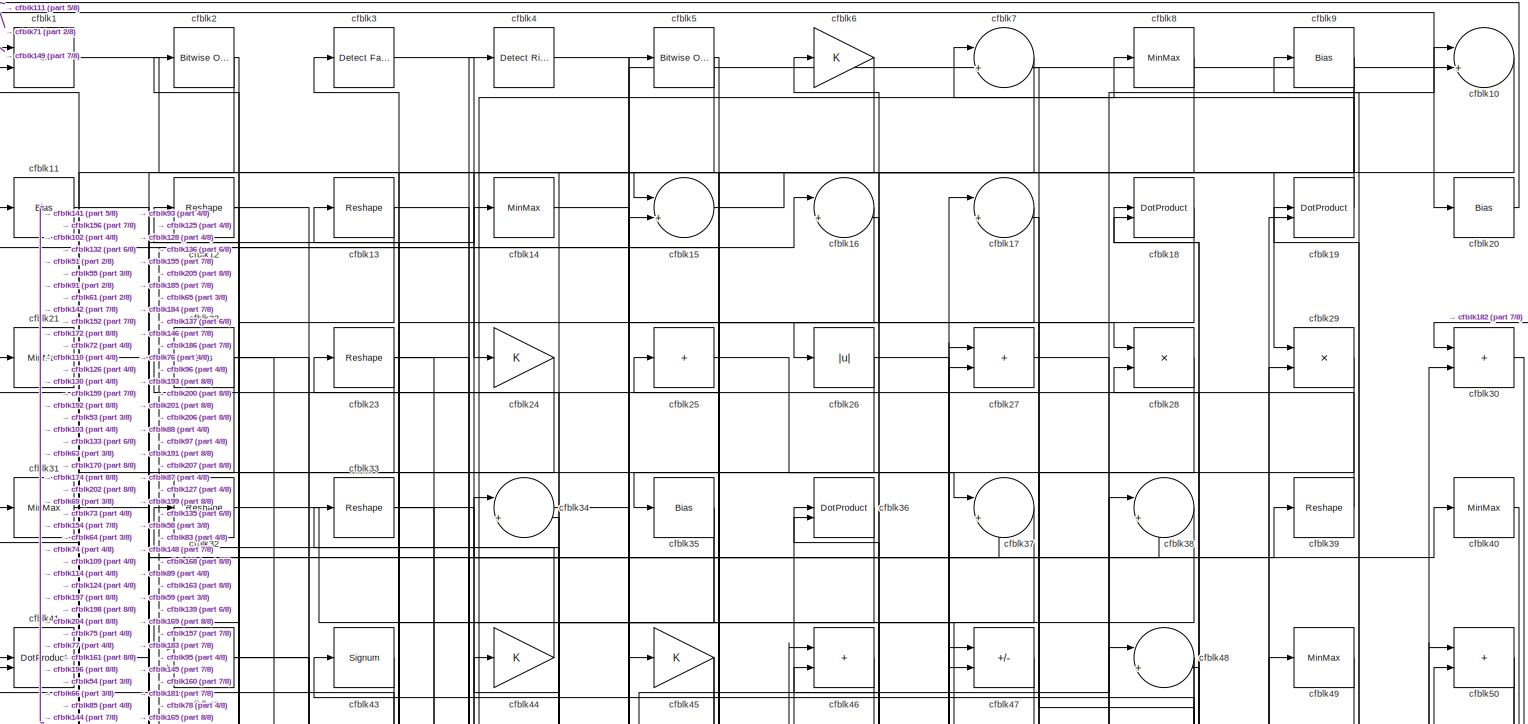
[diagram: root canvas - part 1/8, full width, top band]
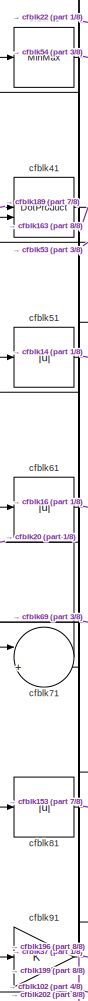
[diagram: root canvas - part 2/8, top left region]
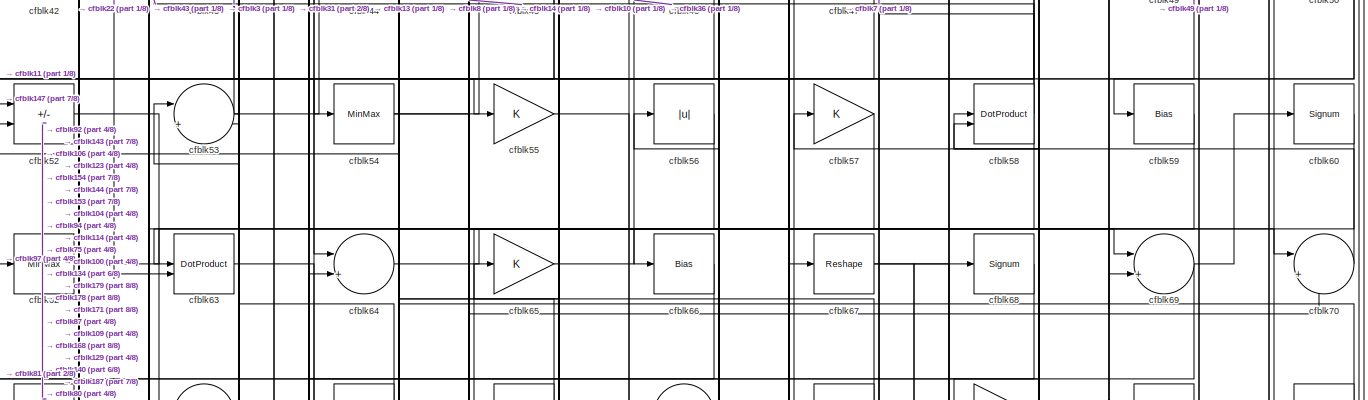
[diagram: root canvas - part 3/8, full width, top band]
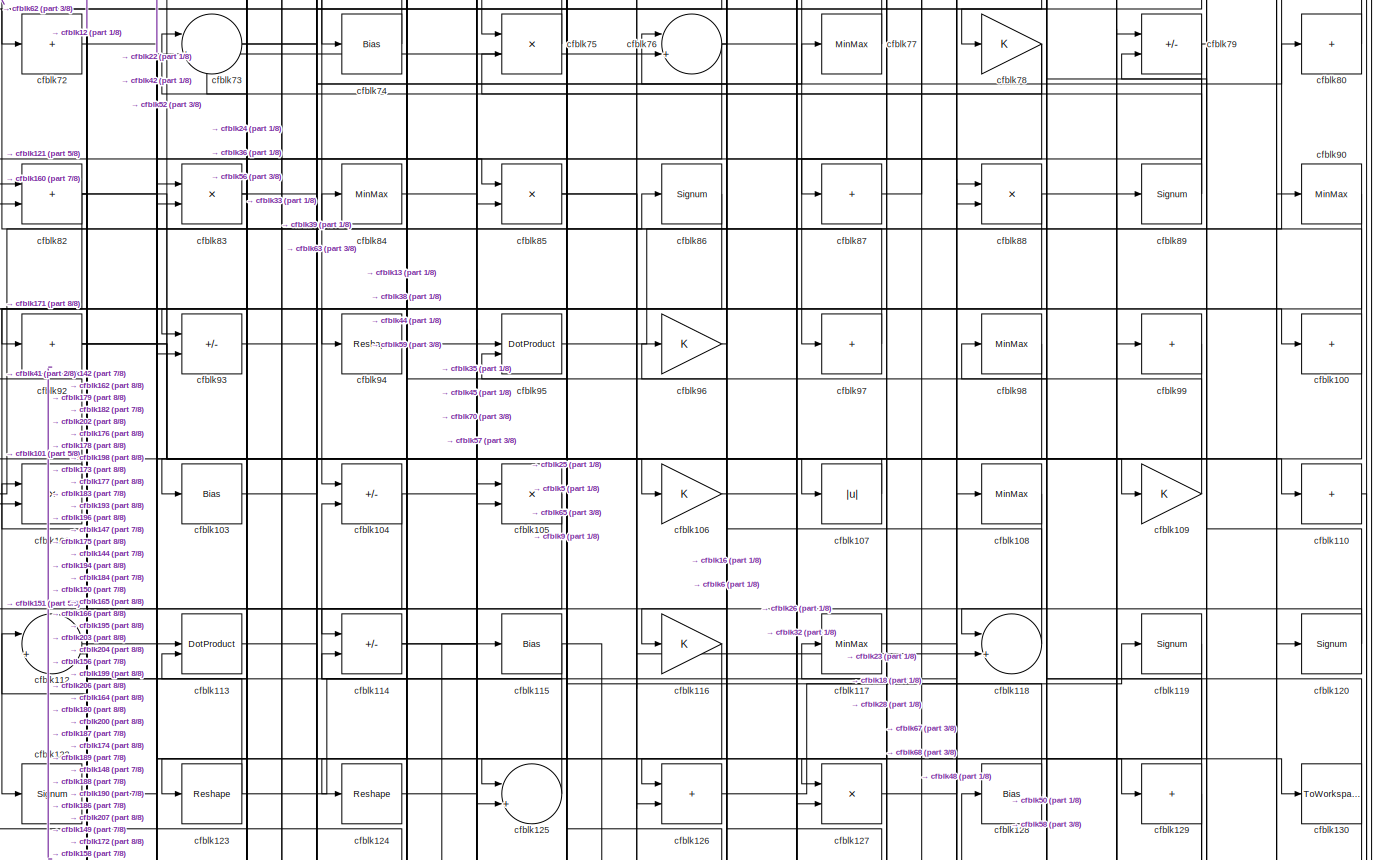
[diagram: root canvas - part 4/8, full width, middle band]
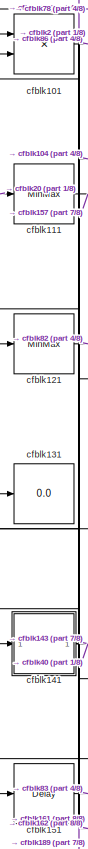
[diagram: root canvas - part 5/8, middle left region]
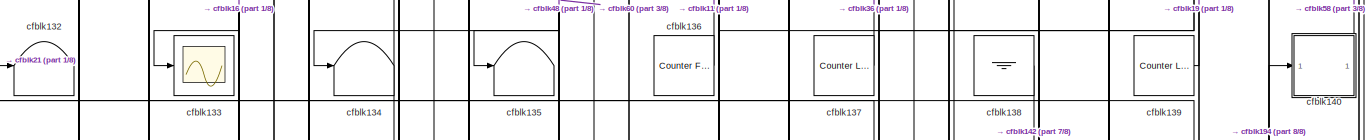
[diagram: root canvas - part 6/8, full width, middle band]
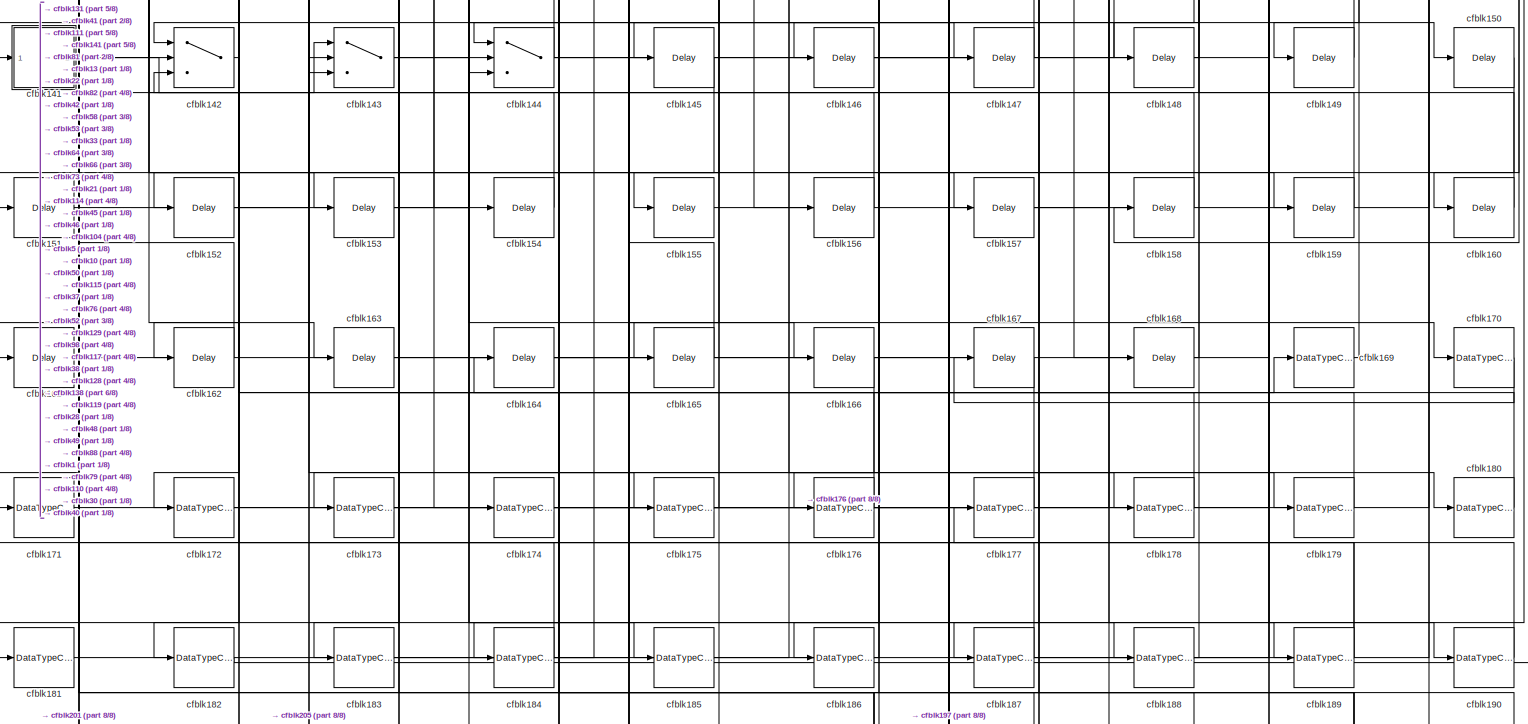
[diagram: root canvas - part 7/8, full width, bottom band]
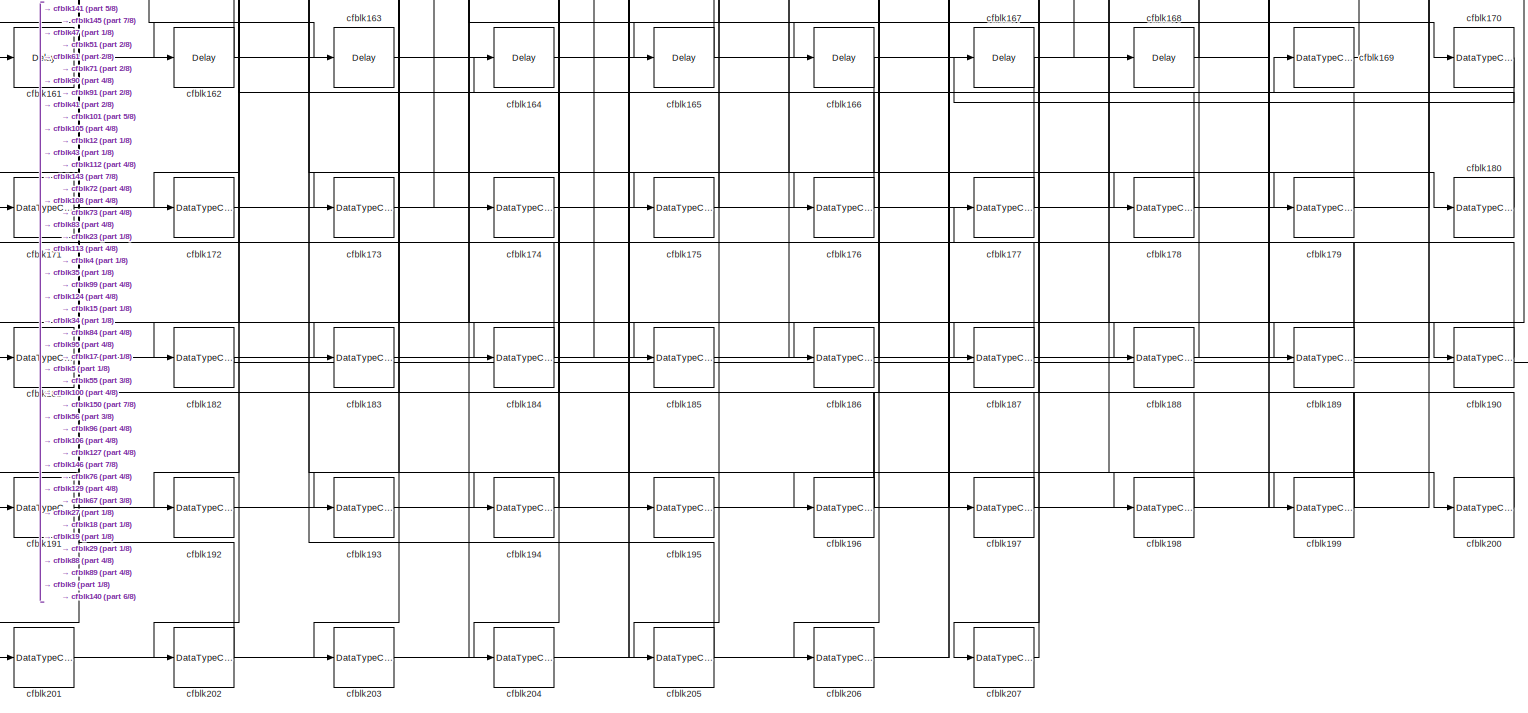
[diagram: root canvas - part 8/8, full width, bottom band]
MODEL slx_1aa80bacadaa
KIND model
CONFIG AbsTol = auto
CONFIG EnableMultiTasking = off
CONFIG FixedStep = auto
CONFIG MaxStep = auto
CONFIG MinStep = auto
CONFIG RelTol = 1e-3
CONFIG SampleTimeConstraint = Unconstrained
CONFIG SolverName = VariableStepAuto
CONFIG StartTime = 0.0
CONFIG StopTime = 10.0
BLOCK [RelationalOperator] cfblk1
  InputSameDT = off
  Operator = <=
  OutDataTypeStr = boolean
BLOCK [Sum] cfblk10
  Inputs = |++
BLOCK [Sum] cfblk100
  IconShape = rectangular
  Inputs = +
BLOCK [Product] cfblk101
  Inputs = */
  RndMeth = Zero
  SaturateOnIntegerOverflow = on
BLOCK [Product] cfblk102
  Inputs = */
  RndMeth = Zero
  SaturateOnIntegerOverflow = on
BLOCK [Bias] cfblk103
  Bias = 0.0
  SaturateOnIntegerOverflow = off
BLOCK [Sum] cfblk104
  IconShape = rectangular
  Inputs = +-
BLOCK [Product] cfblk105
  Inputs = */
  RndMeth = Zero
  SaturateOnIntegerOverflow = on
BLOCK [Gain] cfblk106
BLOCK [Abs] cfblk107
  SaturateOnIntegerOverflow = off
BLOCK [MinMax] cfblk108
BLOCK [Gain] cfblk109
BLOCK [Bias] cfblk11
  Bias = 0.0
  SaturateOnIntegerOverflow = off
BLOCK [Sum] cfblk110
  IconShape = rectangular
  Inputs = +
BLOCK [MinMax] cfblk111
BLOCK [Sum] cfblk112
  Inputs = |++
BLOCK [DotProduct] cfblk113
  OutDataTypeStr = Inherit: Inherit via internal rule
BLOCK [Sum] cfblk114
  IconShape = rectangular
  Inputs = +-
BLOCK [Bias] cfblk115
  Bias = 0.0
  SaturateOnIntegerOverflow = off
BLOCK [Gain] cfblk116
BLOCK [MinMax] cfblk117
BLOCK [Sum] cfblk118
  Inputs = |++
BLOCK [Signum] cfblk119
BLOCK [Reshape] cfblk12
BLOCK [Signum] cfblk120
BLOCK [MinMax] cfblk121
BLOCK [Signum] cfblk122
BLOCK [Reshape] cfblk123
BLOCK [Reshape] cfblk124
BLOCK [Sum] cfblk125
  Inputs = |++
BLOCK [Sum] cfblk126
  IconShape = rectangular
BLOCK [Product] cfblk127
  Inputs = */
  RndMeth = Zero
  SaturateOnIntegerOverflow = on
BLOCK [Bias] cfblk128
  Bias = 0.0
  SaturateOnIntegerOverflow = off
BLOCK [Sum] cfblk129
  IconShape = rectangular
  Inputs = +
BLOCK [Reshape] cfblk13
BLOCK [ToWorkspace] cfblk130
  MaxDataPoints = inf
  SampleTime = -1
  SaveFormat = Timeseries
  VariableName = simout
BLOCK [Display] cfblk131
  Decimation = 1
BLOCK [Terminator] cfblk132
BLOCK [Scope] cfblk133
  Floating = off
  NumInputPorts = 1
  ScopeSpecificationString = Simulink.scopes.TimeScopeBlockCfg('CurrentConfiguration', extmgr.ConfigurationSet(extmgr.Configuration('Core','General UI',true),extmgr.Configuration('Core','Source UI',true),extmgr.Configuration('Sources','WiredSimulink',true,'DataLoggingVariableName','ScopeData2','DataLoggingSaveFormat','Array','DataLoggingLimitDataPoints',true,'DataLoggingDecimation','1'),extmgr.Configuration('Visuals','Time Do...<+868ch>
BLOCK [Terminator] cfblk134
BLOCK [Terminator] cfblk135
BLOCK [Reference] cfblk136  REF=hdlsllib/Sources/Counter
Free-Running
  SourceBlock = hdlsllib/Sources/Counter\nFree-Running
  SourceType = Counter Free-Running
BLOCK [Reference] cfblk137  REF=hdlsllib/Sources/Counter
Limited
  SourceBlock = hdlsllib/Sources/Counter\nLimited
  SourceType = Counter Limited
BLOCK [Ground] cfblk138
BLOCK [Reference] cfblk139  REF=hdlsllib/Sources/Counter
Limited
  SourceBlock = hdlsllib/Sources/Counter\nLimited
  SourceType = Counter Limited
BLOCK [MinMax] cfblk14
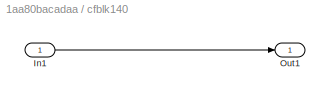
BLOCK [SubSystem] cfblk140
  LibrarySourceBlock = hdlsllib/Ports &\nSubsystems/Subsystem
BLOCK [Inport] cfblk140/In1
BLOCK [Outport] cfblk140/Out1
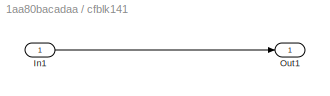
BLOCK [SubSystem] cfblk141
  LibrarySourceBlock = hdlsllib/Ports &\nSubsystems/Subsystem
BLOCK [Inport] cfblk141/In1
BLOCK [Outport] cfblk141/Out1
BLOCK [Switch] cfblk142
  InputSameDT = off
  SaturateOnIntegerOverflow = off
BLOCK [Switch] cfblk143
  InputSameDT = off
  SaturateOnIntegerOverflow = off
BLOCK [Switch] cfblk144
  InputSameDT = off
  SaturateOnIntegerOverflow = off
BLOCK [Delay] cfblk145
  InputPortMap = u0
  SampleTime = 1
BLOCK [Delay] cfblk146
  InputPortMap = u0
  SampleTime = 1
BLOCK [Delay] cfblk147
  InputPortMap = u0
  SampleTime = 1
BLOCK [Delay] cfblk148
  InputPortMap = u0
  SampleTime = 1
BLOCK [Delay] cfblk149
  InputPortMap = u0
  SampleTime = 1
BLOCK [Sum] cfblk15
  Inputs = |++
BLOCK [Delay] cfblk150
  InputPortMap = u0
  SampleTime = 1
BLOCK [Delay] cfblk151
  InputPortMap = u0
  SampleTime = 1
BLOCK [Delay] cfblk152
  InputPortMap = u0
  SampleTime = 1
BLOCK [Delay] cfblk153
  InputPortMap = u0
  SampleTime = 1
BLOCK [Delay] cfblk154
  InputPortMap = u0
  SampleTime = 1
BLOCK [Delay] cfblk155
  InputPortMap = u0
  SampleTime = 1
BLOCK [Delay] cfblk156
  InputPortMap = u0
  SampleTime = 1
BLOCK [Delay] cfblk157
  InputPortMap = u0
  SampleTime = 1
BLOCK [Delay] cfblk158
  InputPortMap = u0
  SampleTime = 1
BLOCK [Delay] cfblk159
  InputPortMap = u0
  SampleTime = 1
BLOCK [Sum] cfblk16
  Inputs = |++
BLOCK [Delay] cfblk160
  InputPortMap = u0
  SampleTime = 1
BLOCK [Delay] cfblk161
  InputPortMap = u0
  SampleTime = 1
BLOCK [Delay] cfblk162
  InputPortMap = u0
  SampleTime = 1
BLOCK [Delay] cfblk163
  InputPortMap = u0
  SampleTime = 1
BLOCK [Delay] cfblk164
  InputPortMap = u0
  SampleTime = 1
BLOCK [Delay] cfblk165
  InputPortMap = u0
  SampleTime = 1
BLOCK [Delay] cfblk166
  InputPortMap = u0
  SampleTime = 1
BLOCK [Delay] cfblk167
  InputPortMap = u0
  SampleTime = 1
BLOCK [Delay] cfblk168
  InputPortMap = u0
  SampleTime = 1
BLOCK [DataTypeConversion] cfblk169
  OutDataTypeStr = uint8
  RndMeth = Floor
  SaturateOnIntegerOverflow = off
BLOCK [Sum] cfblk17
  Inputs = |++
BLOCK [DataTypeConversion] cfblk170
  OutDataTypeStr = uint8
  RndMeth = Floor
  SaturateOnIntegerOverflow = off
BLOCK [DataTypeConversion] cfblk171
  OutDataTypeStr = uint8
  RndMeth = Floor
  SaturateOnIntegerOverflow = off
BLOCK [DataTypeConversion] cfblk172
  OutDataTypeStr = uint8
  RndMeth = Floor
  SaturateOnIntegerOverflow = off
BLOCK [DataTypeConversion] cfblk173
  OutDataTypeStr = uint8
  RndMeth = Floor
  SaturateOnIntegerOverflow = off
BLOCK [DataTypeConversion] cfblk174
  OutDataTypeStr = uint8
  RndMeth = Floor
  SaturateOnIntegerOverflow = off
BLOCK [DataTypeConversion] cfblk175
  OutDataTypeStr = uint8
  RndMeth = Floor
  SaturateOnIntegerOverflow = off
BLOCK [DataTypeConversion] cfblk176
  OutDataTypeStr = uint8
  RndMeth = Floor
  SaturateOnIntegerOverflow = off
BLOCK [DataTypeConversion] cfblk177
  OutDataTypeStr = uint8
  RndMeth = Floor
  SaturateOnIntegerOverflow = off
BLOCK [DataTypeConversion] cfblk178
  OutDataTypeStr = uint8
  RndMeth = Floor
  SaturateOnIntegerOverflow = off
BLOCK [DataTypeConversion] cfblk179
  OutDataTypeStr = uint8
  RndMeth = Floor
  SaturateOnIntegerOverflow = off
BLOCK [DotProduct] cfblk18
  OutDataTypeStr = Inherit: Inherit via internal rule
BLOCK [DataTypeConversion] cfblk180
  OutDataTypeStr = uint8
  RndMeth = Floor
  SaturateOnIntegerOverflow = off
BLOCK [DataTypeConversion] cfblk181
  OutDataTypeStr = uint8
  RndMeth = Floor
  SaturateOnIntegerOverflow = off
BLOCK [DataTypeConversion] cfblk182
  OutDataTypeStr = uint8
  RndMeth = Floor
  SaturateOnIntegerOverflow = off
BLOCK [DataTypeConversion] cfblk183
  OutDataTypeStr = uint8
  RndMeth = Floor
  SaturateOnIntegerOverflow = off
BLOCK [DataTypeConversion] cfblk184
  RndMeth = Floor
  SaturateOnIntegerOverflow = off
BLOCK [DataTypeConversion] cfblk185
  OutDataTypeStr = uint8
  RndMeth = Floor
  SaturateOnIntegerOverflow = off
BLOCK [DataTypeConversion] cfblk186
  OutDataTypeStr = uint8
  RndMeth = Floor
  SaturateOnIntegerOverflow = off
BLOCK [DataTypeConversion] cfblk187
  RndMeth = Floor
  SaturateOnIntegerOverflow = off
BLOCK [DataTypeConversion] cfblk188
  OutDataTypeStr = uint8
  RndMeth = Floor
  SaturateOnIntegerOverflow = off
BLOCK [DataTypeConversion] cfblk189
  RndMeth = Floor
  SaturateOnIntegerOverflow = off
BLOCK [DotProduct] cfblk19
  OutDataTypeStr = Inherit: Inherit via internal rule
BLOCK [DataTypeConversion] cfblk190
  OutDataTypeStr = uint8
  RndMeth = Floor
  SaturateOnIntegerOverflow = off
BLOCK [DataTypeConversion] cfblk191
  OutDataTypeStr = uint8
  RndMeth = Floor
  SaturateOnIntegerOverflow = off
BLOCK [DataTypeConversion] cfblk192
  OutDataTypeStr = uint8
  RndMeth = Floor
  SaturateOnIntegerOverflow = off
BLOCK [DataTypeConversion] cfblk193
  OutDataTypeStr = uint8
  RndMeth = Floor
  SaturateOnIntegerOverflow = off
BLOCK [DataTypeConversion] cfblk194
  RndMeth = Floor
  SaturateOnIntegerOverflow = off
BLOCK [DataTypeConversion] cfblk195
  OutDataTypeStr = uint8
  RndMeth = Floor
  SaturateOnIntegerOverflow = off
BLOCK [DataTypeConversion] cfblk196
  RndMeth = Floor
  SaturateOnIntegerOverflow = off
BLOCK [DataTypeConversion] cfblk197
  OutDataTypeStr = uint8
  RndMeth = Floor
  SaturateOnIntegerOverflow = off
BLOCK [DataTypeConversion] cfblk198
  OutDataTypeStr = uint8
  RndMeth = Floor
  SaturateOnIntegerOverflow = off
BLOCK [DataTypeConversion] cfblk199
  RndMeth = Floor
  SaturateOnIntegerOverflow = off
BLOCK [Reference] cfblk2  REF=simulink/Logic and Bit
Operations/Bitwise
Operator
  LibrarySourceBlock = hdlsllib/Logic and Bit\nOperations/Bitwise\nOperator
  SourceBlock = simulink/Logic and Bit\nOperations/Bitwise\nOperator
  SourceType = Bitwise Operator
BLOCK [Bias] cfblk20
  Bias = 0.0
  SaturateOnIntegerOverflow = off
BLOCK [DataTypeConversion] cfblk200
  OutDataTypeStr = uint8
  RndMeth = Floor
  SaturateOnIntegerOverflow = off
BLOCK [DataTypeConversion] cfblk201
  OutDataTypeStr = uint8
  RndMeth = Floor
  SaturateOnIntegerOverflow = off
BLOCK [DataTypeConversion] cfblk202
  RndMeth = Floor
  SaturateOnIntegerOverflow = off
BLOCK [DataTypeConversion] cfblk203
  OutDataTypeStr = uint8
  RndMeth = Floor
  SaturateOnIntegerOverflow = off
BLOCK [DataTypeConversion] cfblk204
  OutDataTypeStr = uint8
  RndMeth = Floor
  SaturateOnIntegerOverflow = off
BLOCK [DataTypeConversion] cfblk205
  OutDataTypeStr = uint8
  RndMeth = Floor
  SaturateOnIntegerOverflow = off
BLOCK [DataTypeConversion] cfblk206
  OutDataTypeStr = uint8
  RndMeth = Floor
  SaturateOnIntegerOverflow = off
BLOCK [DataTypeConversion] cfblk207
  OutDataTypeStr = uint8
  RndMeth = Floor
  SaturateOnIntegerOverflow = off
BLOCK [MinMax] cfblk21
BLOCK [Bias] cfblk22
  Bias = 0.0
  SaturateOnIntegerOverflow = off
BLOCK [Reshape] cfblk23
BLOCK [Gain] cfblk24
BLOCK [Sum] cfblk25
  IconShape = rectangular
  Inputs = +
BLOCK [Abs] cfblk26
  SaturateOnIntegerOverflow = off
BLOCK [Sum] cfblk27
  IconShape = rectangular
BLOCK [Product] cfblk28
  Inputs = */
  RndMeth = Zero
  SaturateOnIntegerOverflow = on
BLOCK [Product] cfblk29
  Inputs = */
  RndMeth = Zero
  SaturateOnIntegerOverflow = on
BLOCK [Reference] cfblk3  REF=hdlsllib/Logic and Bit
Operations/Detect Fall
Negative
  SourceBlock = hdlsllib/Logic and Bit\nOperations/Detect Fall\nNegative
  SourceType = Detect Fall Negative
BLOCK [Sum] cfblk30
  IconShape = rectangular
BLOCK [MinMax] cfblk31
BLOCK [Reshape] cfblk32
BLOCK [Reshape] cfblk33
BLOCK [Sum] cfblk34
  Inputs = |++
BLOCK [Bias] cfblk35
  Bias = 0.0
  SaturateOnIntegerOverflow = off
BLOCK [DotProduct] cfblk36
  OutDataTypeStr = Inherit: Inherit via internal rule
BLOCK [Sum] cfblk37
  Inputs = |++
BLOCK [Sum] cfblk38
  Inputs = |++
BLOCK [Reshape] cfblk39
BLOCK [Reference] cfblk4  REF=hdlsllib/Logic and Bit
Operations/Detect Rise
Nonnegative
  SourceBlock = hdlsllib/Logic and Bit\nOperations/Detect Rise\nNonnegative
  SourceType = Detect Rise Nonnegative
BLOCK [MinMax] cfblk40
BLOCK [DotProduct] cfblk41
  OutDataTypeStr = Inherit: Inherit via internal rule
BLOCK [Sum] cfblk42
  IconShape = rectangular
BLOCK [Signum] cfblk43
BLOCK [Gain] cfblk44
BLOCK [Gain] cfblk45
BLOCK [Sum] cfblk46
  IconShape = rectangular
BLOCK [Sum] cfblk47
  IconShape = rectangular
  Inputs = +-
BLOCK [Sum] cfblk48
  Inputs = |++
BLOCK [MinMax] cfblk49
BLOCK [Reference] cfblk5  REF=simulink/Logic and Bit
Operations/Bitwise
Operator
  LibrarySourceBlock = hdlsllib/Logic and Bit\nOperations/Bitwise\nOperator
  SourceBlock = simulink/Logic and Bit\nOperations/Bitwise\nOperator
  SourceType = Bitwise Operator
BLOCK [Sum] cfblk50
  IconShape = rectangular
BLOCK [Abs] cfblk51
  SaturateOnIntegerOverflow = off
BLOCK [Sum] cfblk52
  IconShape = rectangular
  Inputs = +-
BLOCK [Sum] cfblk53
  Inputs = |++
BLOCK [MinMax] cfblk54
BLOCK [Gain] cfblk55
BLOCK [Abs] cfblk56
  SaturateOnIntegerOverflow = off
BLOCK [Gain] cfblk57
BLOCK [DotProduct] cfblk58
  OutDataTypeStr = Inherit: Inherit via internal rule
BLOCK [Bias] cfblk59
  Bias = 0.0
  SaturateOnIntegerOverflow = off
BLOCK [Gain] cfblk6
BLOCK [Signum] cfblk60
BLOCK [Abs] cfblk61
  SaturateOnIntegerOverflow = off
BLOCK [MinMax] cfblk62
BLOCK [DotProduct] cfblk63
  OutDataTypeStr = Inherit: Inherit via internal rule
BLOCK [Sum] cfblk64
  Inputs = |++
BLOCK [Gain] cfblk65
BLOCK [Bias] cfblk66
  Bias = 0.0
  SaturateOnIntegerOverflow = off
BLOCK [Reshape] cfblk67
BLOCK [Signum] cfblk68
BLOCK [Sum] cfblk69
  Inputs = |++
BLOCK [Sum] cfblk7
  Inputs = |++
BLOCK [Sum] cfblk70
  Inputs = |++
BLOCK [Sum] cfblk71
  Inputs = |++
BLOCK [Sum] cfblk72
  IconShape = rectangular
  Inputs = +
BLOCK [Sum] cfblk73
  Inputs = |++
BLOCK [Bias] cfblk74
  Bias = 0.0
  SaturateOnIntegerOverflow = off
BLOCK [Product] cfblk75
  Inputs = */
  RndMeth = Zero
  SaturateOnIntegerOverflow = on
BLOCK [Sum] cfblk76
  Inputs = |++
BLOCK [MinMax] cfblk77
BLOCK [Gain] cfblk78
BLOCK [Sum] cfblk79
  IconShape = rectangular
  Inputs = +-
BLOCK [MinMax] cfblk8
BLOCK [Sum] cfblk80
  IconShape = rectangular
  Inputs = +
BLOCK [Abs] cfblk81
  SaturateOnIntegerOverflow = off
BLOCK [Sum] cfblk82
  IconShape = rectangular
BLOCK [Product] cfblk83
  Inputs = */
  RndMeth = Zero
  SaturateOnIntegerOverflow = on
BLOCK [MinMax] cfblk84
BLOCK [Product] cfblk85
  Inputs = */
  RndMeth = Zero
  SaturateOnIntegerOverflow = on
BLOCK [Signum] cfblk86
BLOCK [Sum] cfblk87
  IconShape = rectangular
  Inputs = +
BLOCK [Product] cfblk88
  Inputs = */
  RndMeth = Zero
  SaturateOnIntegerOverflow = on
BLOCK [Signum] cfblk89
BLOCK [Bias] cfblk9
  Bias = 0.0
  SaturateOnIntegerOverflow = off
BLOCK [MinMax] cfblk90
BLOCK [Gain] cfblk91
BLOCK [Sum] cfblk92
  IconShape = rectangular
  Inputs = +
BLOCK [Sum] cfblk93
  IconShape = rectangular
  Inputs = +-
BLOCK [Reshape] cfblk94
BLOCK [DotProduct] cfblk95
  OutDataTypeStr = Inherit: Inherit via internal rule
BLOCK [Gain] cfblk96
BLOCK [Sum] cfblk97
  IconShape = rectangular
  Inputs = +
BLOCK [MinMax] cfblk98
BLOCK [Sum] cfblk99
  IconShape = rectangular
  Inputs = +
NET cfblk100:1 -> cfblk206:1, cfblk65:1
LINE cfblk101:1 -> cfblk86:1
LINE cfblk102:1 -> cfblk41:2
LINE cfblk103:1 -> cfblk77:1
NET cfblk104:1 -> cfblk150:1, cfblk151:1
LINE cfblk105:1 -> cfblk202:1
LINE cfblk106:1 -> cfblk200:1
LINE cfblk107:1 -> cfblk101:1
LINE cfblk108:1 -> cfblk173:1
LINE cfblk109:1 -> cfblk44:1
LINE cfblk10:1 -> cfblk155:1
LINE cfblk110:1 -> cfblk158:1
LINE cfblk111:1 -> cfblk157:1
LINE cfblk112:1 -> cfblk178:1
LINE cfblk113:1 -> cfblk175:1
NET cfblk114:1 -> cfblk45:1, cfblk70:2
NET cfblk115:1 -> cfblk104:2, cfblk156:1
LINE cfblk116:1 -> cfblk126:1
LINE cfblk117:1 -> cfblk189:1
LINE cfblk118:1 -> cfblk76:1
LINE cfblk119:1 -> cfblk148:1
LINE cfblk11:1 -> cfblk55:1
NET cfblk120:1 -> cfblk118:1, cfblk79:2
LINE cfblk121:1 -> cfblk82:2
LINE cfblk122:1 -> cfblk84:1
NET cfblk123:1 -> cfblk102:1, cfblk88:1
LINE cfblk124:1 -> cfblk166:1
LINE cfblk125:1 -> cfblk12:1
LINE cfblk126:1 -> cfblk119:1
LINE cfblk127:1 -> cfblk48:1
LINE cfblk128:1 -> cfblk25:1
NET cfblk129:1 -> cfblk186:1, cfblk207:1, cfblk58:2
NET cfblk12:1 -> cfblk130:1, cfblk172:1
LINE cfblk136:1 -> cfblk11:1
LINE cfblk137:1 -> cfblk36:2
LINE cfblk138:1 -> cfblk142:1
LINE cfblk139:1 -> cfblk19:1
NET cfblk13:1 -> cfblk152:1, cfblk69:2
LINE cfblk140/In1:1 -> cfblk140/Out1:1
LINE cfblk140:1 -> cfblk58:1
LINE cfblk141/In1:1 -> cfblk141/Out1:1
NET cfblk141:1 -> cfblk143:1, cfblk161:1, cfblk40:1
LINE cfblk142:1 -> cfblk22:1
NET cfblk143:1 -> cfblk185:1, cfblk188:1
NET cfblk144:1 -> cfblk128:1, cfblk21:1, cfblk49:1
LINE cfblk145:1 -> cfblk201:1
LINE cfblk146:1 -> cfblk197:1
LINE cfblk147:1 -> cfblk52:1
LINE cfblk148:1 -> cfblk28:2
LINE cfblk149:1 -> cfblk1:1
LINE cfblk14:1 -> cfblk66:1
LINE cfblk150:1 -> cfblk176:1
LINE cfblk151:1 -> cfblk83:1
LINE cfblk152:1 -> cfblk144:2
LINE cfblk153:1 -> cfblk64:2
LINE cfblk154:1 -> cfblk53:1
LINE cfblk155:1 -> cfblk38:1
LINE cfblk156:1 -> cfblk1:2
LINE cfblk157:1 -> cfblk50:1
LINE cfblk158:1 -> cfblk114:2
LINE cfblk159:1 -> cfblk48:2
LINE cfblk15:1 -> cfblk29:1
LINE cfblk160:1 -> cfblk82:1
LINE cfblk161:1 -> cfblk15:2
LINE cfblk162:1 -> cfblk101:2
LINE cfblk163:1 -> cfblk29:2
LINE cfblk164:1 -> cfblk127:2
LINE cfblk165:1 -> cfblk95:1
LINE cfblk166:1 -> cfblk203:1
LINE cfblk167:1 -> cfblk169:1
LINE cfblk168:1 -> cfblk18:2
LINE cfblk169:1 -> cfblk9:1
LINE cfblk16:1 -> cfblk133:1
LINE cfblk170:1 -> cfblk167:1
LINE cfblk171:1 -> cfblk67:1
LINE cfblk172:1 -> cfblk90:1
LINE cfblk173:1 -> cfblk89:1
LINE cfblk174:1 -> cfblk108:1
LINE cfblk175:1 -> cfblk95:2
LINE cfblk176:1 -> cfblk113:1
LINE cfblk177:1 -> cfblk113:2
LINE cfblk178:1 -> cfblk56:1
LINE cfblk179:1 -> cfblk112:1
LINE cfblk17:1 -> cfblk205:1
LINE cfblk180:1 -> cfblk112:2
LINE cfblk181:1 -> cfblk5:1
LINE cfblk182:1 -> cfblk30:1
LINE cfblk183:1 -> cfblk30:2
NET cfblk184:1 -> cfblk115:1, cfblk142:3
LINE cfblk185:1 -> cfblk46:1
LINE cfblk186:1 -> cfblk46:2
NET cfblk187:1 -> cfblk53:2, cfblk79:1
LINE cfblk188:1 -> cfblk98:1
NET cfblk189:1 -> cfblk131:1, cfblk41:1
LINE cfblk18:1 -> cfblk87:1
LINE cfblk190:1 -> cfblk117:1
LINE cfblk191:1 -> cfblk19:2
LINE cfblk192:1 -> cfblk47:1
LINE cfblk193:1 -> cfblk47:2
NET cfblk194:1 -> cfblk140:1, cfblk164:1
LINE cfblk195:1 -> cfblk99:1
NET cfblk196:1 -> cfblk61:1, cfblk73:1, cfblk91:1
LINE cfblk197:1 -> cfblk34:1
LINE cfblk198:1 -> cfblk34:2
NET cfblk199:1 -> cfblk177:1, cfblk51:1, cfblk96:1
LINE cfblk19:1 -> cfblk7:1
LINE cfblk1:1 -> cfblk15:1
LINE cfblk200:1 -> cfblk27:1
LINE cfblk201:1 -> cfblk27:2
NET cfblk202:1 -> cfblk4:1, cfblk71:2
LINE cfblk203:1 -> cfblk105:1
LINE cfblk204:1 -> cfblk105:2
LINE cfblk205:1 -> cfblk143:2
LINE cfblk206:1 -> cfblk17:1
LINE cfblk207:1 -> cfblk17:2
LINE cfblk20:1 -> cfblk111:1
LINE cfblk21:1 -> cfblk132:1
NET cfblk22:1 -> cfblk126:2, cfblk63:2, cfblk71:1
NET cfblk23:1 -> cfblk170:1, cfblk174:1, cfblk42:2
LINE cfblk24:1 -> cfblk103:1
LINE cfblk25:1 -> cfblk37:1
NET cfblk26:1 -> cfblk72:1, cfblk88:2
LINE cfblk27:1 -> cfblk199:1
LINE cfblk28:1 -> cfblk127:1
LINE cfblk29:1 -> cfblk35:1
NET cfblk2:1 -> cfblk141:1, cfblk42:1
LINE cfblk30:1 -> cfblk181:1
LINE cfblk31:1 -> cfblk54:1
LINE cfblk32:1 -> cfblk97:1
NET cfblk33:1 -> cfblk154:1, cfblk74:1
LINE cfblk34:1 -> cfblk196:1
NET cfblk35:1 -> cfblk204:1, cfblk85:2
LINE cfblk36:1 -> cfblk93:1
LINE cfblk37:1 -> cfblk146:1
LINE cfblk38:1 -> cfblk114:1
LINE cfblk39:1 -> cfblk2:1
LINE cfblk3:1 -> cfblk64:1
LINE cfblk40:1 -> cfblk160:1
LINE cfblk41:1 -> cfblk163:1
NET cfblk42:1 -> cfblk110:1, cfblk159:1
LINE cfblk43:1 -> cfblk192:1
LINE cfblk44:1 -> cfblk32:1
NET cfblk45:1 -> cfblk144:1, cfblk93:2
LINE cfblk46:1 -> cfblk184:1
LINE cfblk47:1 -> cfblk191:1
NET cfblk48:1 -> cfblk135:1, cfblk83:2
LINE cfblk49:1 -> cfblk59:1
LINE cfblk4:1 -> cfblk28:1
NET cfblk50:1 -> cfblk145:1, cfblk78:1
LINE cfblk51:1 -> cfblk14:1
LINE cfblk52:1 -> cfblk106:1
NET cfblk53:1 -> cfblk31:1, cfblk3:1, cfblk8:1
NET cfblk54:1 -> cfblk10:1, cfblk10:2
LINE cfblk55:1 -> cfblk179:1
LINE cfblk56:1 -> cfblk123:1
LINE cfblk57:1 -> cfblk75:1
NET cfblk58:1 -> cfblk143:3, cfblk43:1, cfblk7:2
LINE cfblk59:1 -> cfblk94:1
NET cfblk5:1 -> cfblk102:2, cfblk165:1
LINE cfblk60:1 -> cfblk134:1
LINE cfblk61:1 -> cfblk16:1
LINE cfblk62:1 -> cfblk69:1
LINE cfblk63:1 -> cfblk104:1
LINE cfblk64:1 -> cfblk70:1
LINE cfblk65:1 -> cfblk36:1
LINE cfblk66:1 -> cfblk144:3
NET cfblk67:1 -> cfblk109:1, cfblk168:1
LINE cfblk68:1 -> cfblk92:1
NET cfblk69:1 -> cfblk60:1, cfblk81:1
LINE cfblk6:1 -> cfblk124:1
LINE cfblk70:1 -> cfblk57:1
LINE cfblk71:1 -> cfblk20:1
LINE cfblk72:1 -> cfblk198:1
NET cfblk73:1 -> cfblk147:1, cfblk38:2
LINE cfblk74:1 -> cfblk13:1
LINE cfblk75:1 -> cfblk33:1
NET cfblk76:1 -> cfblk16:2, cfblk180:1, cfblk183:1
LINE cfblk77:1 -> cfblk23:1
NET cfblk78:1 -> cfblk121:1, cfblk73:2
NET cfblk79:1 -> cfblk116:1, cfblk149:1
LINE cfblk7:1 -> cfblk26:1
LINE cfblk80:1 -> cfblk52:2
LINE cfblk81:1 -> cfblk153:1
NET cfblk82:1 -> cfblk107:1, cfblk142:2, cfblk182:1, cfblk85:1
NET cfblk83:1 -> cfblk193:1, cfblk80:1
LINE cfblk84:1 -> cfblk195:1
NET cfblk85:1 -> cfblk118:2, cfblk129:1
LINE cfblk86:1 -> cfblk122:1
LINE cfblk87:1 -> cfblk68:1
NET cfblk88:1 -> cfblk162:1, cfblk190:1
NET cfblk89:1 -> cfblk18:1, cfblk75:2
LINE cfblk8:1 -> cfblk63:1
LINE cfblk90:1 -> cfblk171:1
LINE cfblk91:1 -> cfblk37:2
NET cfblk92:1 -> cfblk120:1, cfblk125:2, cfblk76:2
LINE cfblk93:1 -> cfblk39:1
LINE cfblk94:1 -> cfblk100:1
LINE cfblk95:1 -> cfblk50:2
LINE cfblk96:1 -> cfblk6:1
LINE cfblk97:1 -> cfblk62:1
LINE cfblk98:1 -> cfblk187:1
LINE cfblk99:1 -> cfblk194:1
NET cfblk9:1 -> cfblk125:1, cfblk24:1
note: NET lines group one-source signal fan-out (src -> all destinations, sorted); 1:1 wires keep LINE
